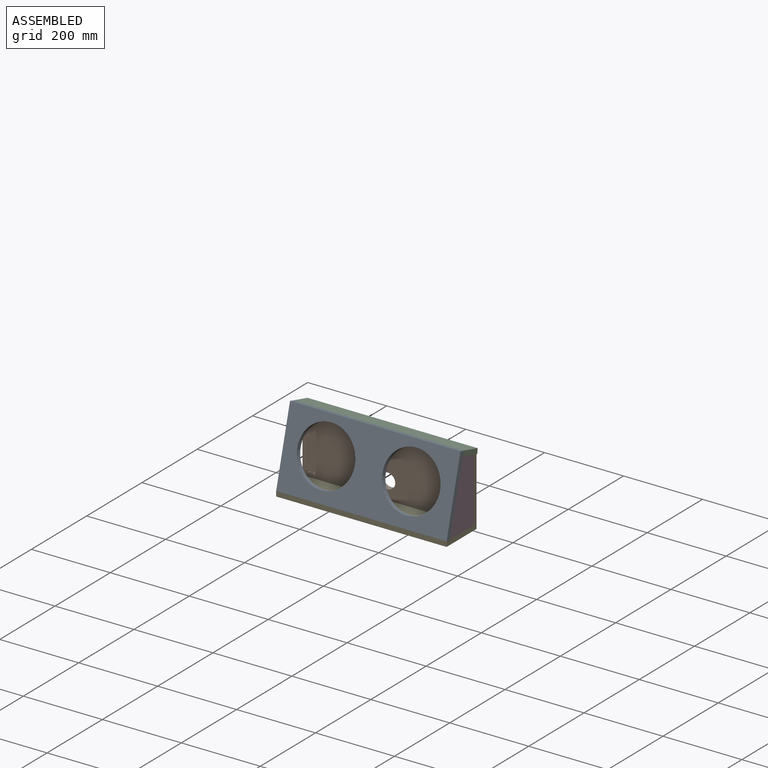
[diagram: assembled view]
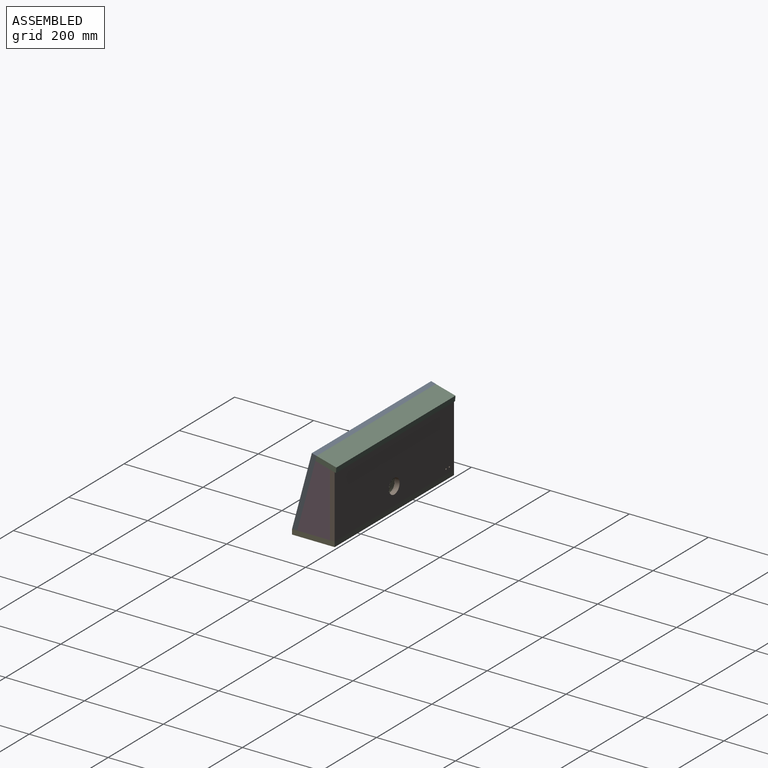
[diagram: assembled view, second angle]
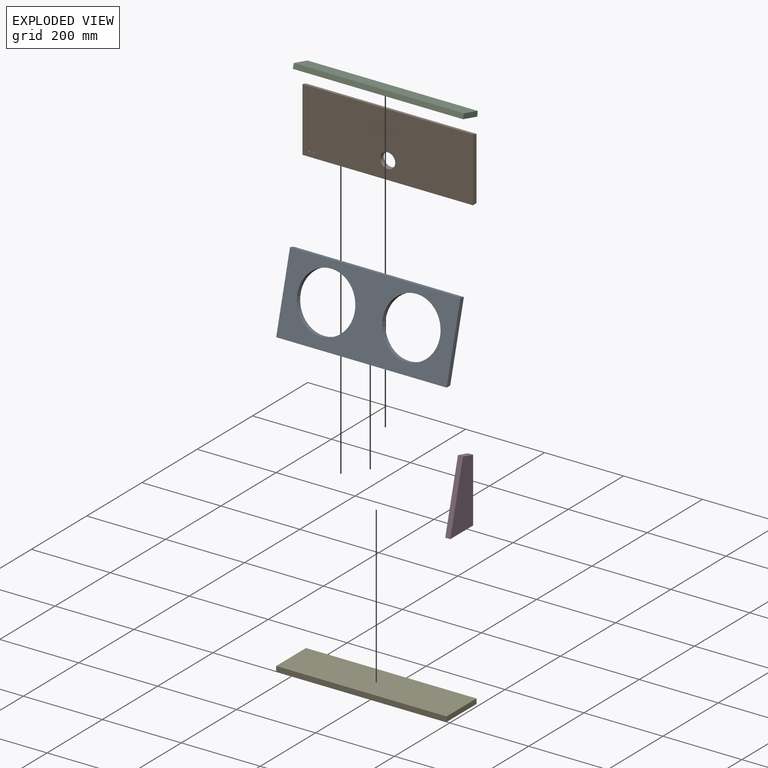
[diagram: exploded view]
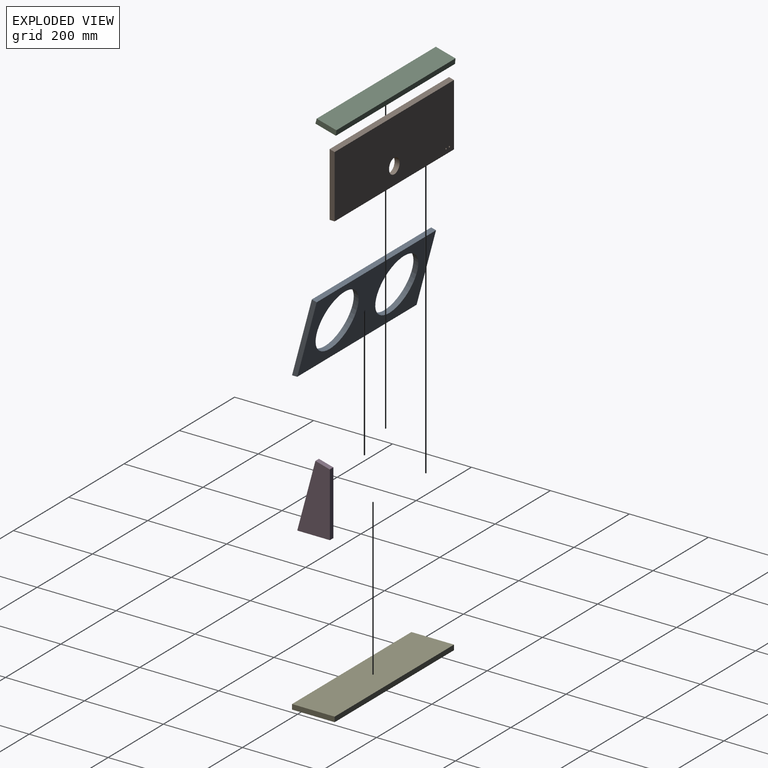
[diagram: exploded view, second angle]
ASSEMBLY  parts=5 mates=4
PART A: 8 faces, bbox 431.8x62.4x187.1 mm
  f0: plane 187.08x62.39mm, normal (1,0,0), area 2438.1mm2, adj f1,f2,f6,f7
  f1: plane 431.8x183.79mm, normal (0,0.97,-0.26), area 48653.4mm2, adj f0,f2,f3,f4,f5,f7
  f2: plane 431.8x12.27mm, normal (0,0.26,0.97), area 5483.9mm2, adj f0,f1,f3,f6
  f3: plane 187.08x62.39mm, normal (-1,0,0), area 2438.1mm2, adj f1,f2,f6,f7
  f4: cylinder r=73.03mm len=146.05mm, axis (0,0.97,-0.26), area 5827.1mm2, adj f1,f6
  f5: cylinder r=73.03mm len=146.05mm, axis (0,0.97,-0.26), area 5827.1mm2, adj f1,f6
  f6: plane 431.8x187.08mm, normal (0,-0.97,0.26), area 50122.8mm2, adj f0,f2,f3,f4,f5,f7
  f7: plane 431.8x13.15mm, normal (0,0,-1), area 5677.3mm2, adj f0,f1,f3,f6
PART B: 9 faces, bbox 431.8x12.7x162.2 mm
  f0: plane 431.8x162.15mm, normal (0,-1,0), area 68852.4mm2, adj f1,f3,f4,f5,f6,f7,f8
  f1: plane 431.8x12.7mm, normal (0,0,-1), area 5483.9mm2, adj f0,f2,f4,f5
  f2: plane 431.8x158.75mm, normal (0,1,0), area 67383mm2, adj f1,f3,f4,f5,f6,f7,f8
  f3: plane 431.8x12.7mm, normal (0,0.26,0.97), area 5677.3mm2, adj f0,f2,f4,f5
  f4: plane 162.15x12.7mm, normal (-1,0,0), area 2037.7mm2, adj f0,f1,f2,f3
  f5: plane 162.15x12.7mm, normal (1,0,0), area 2037.7mm2, adj f0,f1,f2,f3
  f6: cylinder r=19.05mm len=38.1mm, axis (0,1,0), area 1520.1mm2, adj f0,f2
  f7: cylinder r=2mm len=12.7mm, axis (0,1,0), area 159.6mm2, adj f0,f2
  f8: cylinder r=2mm len=12.7mm, axis (0,1,0), area 159.6mm2, adj f0,f2
PART C: 6 faces, bbox 431x53x26.2 mm
  f0: plane 53.04x26.18mm, normal (-1,0,0), area 668.4mm2, adj f1,f3,f4,f5
  f1: plane 431.02x12.27mm, normal (0,-0.97,0.26), area 5474mm2, adj f0,f2,f3,f4
  f2: plane 53.04x26.18mm, normal (1,0,0), area 668.4mm2, adj f1,f3,f4,f5
  f3: plane 431.02x51.92mm, normal (0,-0.26,-0.97), area 23167.9mm2, adj f0,f1,f2,f5
  f4: plane 431.02x49.76mm, normal (0,0.26,0.97), area 22202.7mm2, adj f0,f1,f2,f5
  f5: plane 431.02x12.85mm, normal (0,1,-0.09), area 5558.4mm2, adj f0,f2,f3,f4
PART D: 6 faces, bbox 82.6x171.7x12.7 mm
  f0: plane 36.53x12.7mm, normal (0.26,0.97,0), area 480.3mm2, adj f1,f3,f4,f5
  f1: plane 171.74x46.02mm, normal (-0.97,0.26,0), area 2258.1mm2, adj f0,f2,f4,f5
  f2: plane 82.55x12.7mm, normal (0,-1,0), area 1048.4mm2, adj f1,f3,f4,f5
  f3: plane 161.95x12.7mm, normal (1,0,0), area 2056.8mm2, adj f0,f2,f4,f5
  f4: plane 171.74x82.55mm, normal (0,0,-1), area 10046.9mm2, adj f0,f1,f2,f3
  f5: plane 171.74x82.55mm, normal (0,0,1), area 10046.9mm2, adj f0,f1,f2,f3
PART E: 6 faces, bbox 431.8x108x12.7 mm
  f0: plane 107.95x12.7mm, normal (-1,0,0), area 1371mm2, adj f1,f3,f4,f5
  f1: plane 431.8x12.7mm, normal (0,1,0), area 5483.9mm2, adj f0,f2,f4,f5
  f2: plane 107.95x12.7mm, normal (1,0,0), area 1371mm2, adj f1,f3,f4,f5
  f3: plane 431.8x12.7mm, normal (0,-1,0), area 5483.9mm2, adj f0,f2,f4,f5
  f4: plane 431.8x107.95mm, normal (0,0,-1), area 46612.8mm2, adj f0,f1,f2,f3
  f5: plane 431.8x107.95mm, normal (0,0,1), area 46612.8mm2, adj f0,f1,f2,f3
PLACE A at identity
PLACE B at identity
PLACE C t=(0,-44.27,12.1)mm
PLACE D rot(axis=(0.58,0.58,0.58),120deg) t=(201.34,42.73,85.56)mm
PLACE E at identity fixed
MATE fastened A.f1 <-> D.f1  axis (0,0.97,-0.26) through (201.34,0,-122.98)mm
MATE fastened B.f1 <-> E.f5  axis (0,0,-1) through (-14.56,94.8,-122.98)mm
MATE fastened E.f5 <-> A.f7  axis (0,0,1) through (-14.56,-13.15,-122.98)mm
MATE fastened C.f3 <-> D.f0  axis (0,-0.26,-0.97) through (201.34,46.02,48.76)mm
